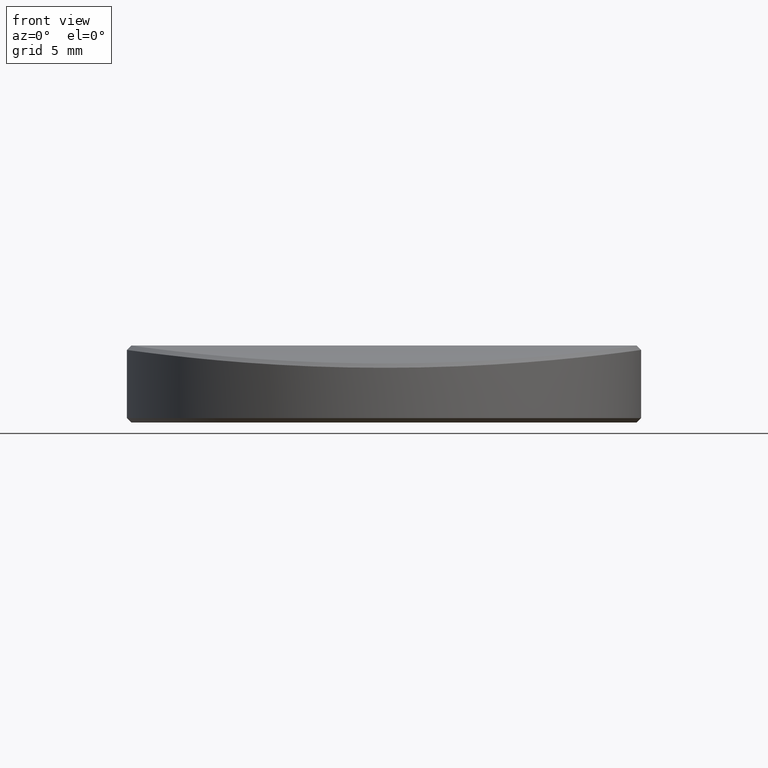
[diagram: clean part render]
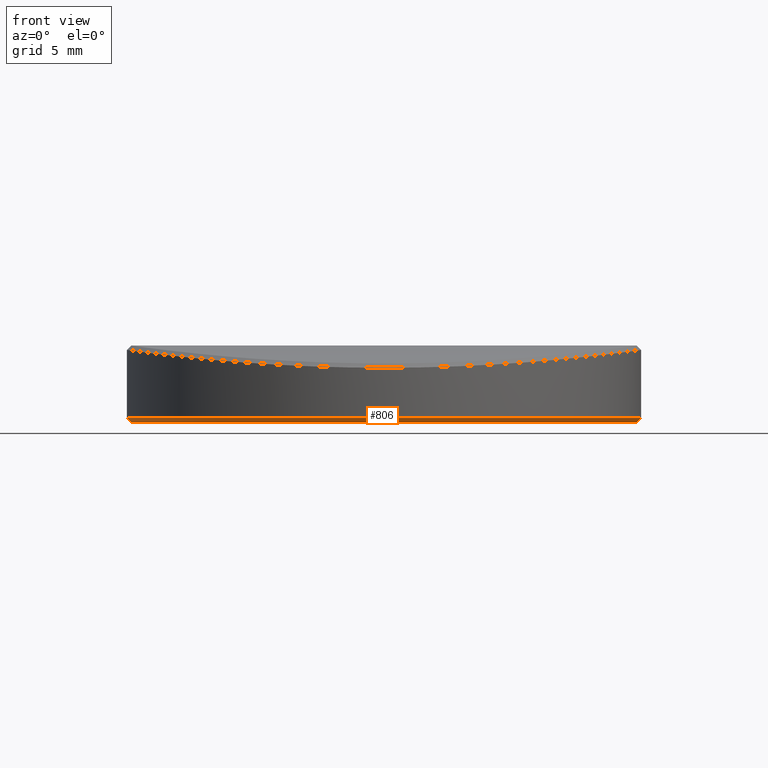
[diagram: same view with one face highlighted and labeled with its STEP entity id]
A machine part, front view. The second image highlights one B-rep face of the part: STEP entity #806.
In plain terms, the highlighted conical surface has half-angle 45 deg.
Its self-contained STEP definition (entity closure, byte-faithful):
#51 = DIRECTION ( 'NONE',  ( 1.000000000000000000, 0.000000000000000000, 0.000000000000000000 ) ) ;
#81 = EDGE_LOOP ( 'NONE', ( #1871, #2416, #2400, #2049 ) ) ;
#168 = DIRECTION ( 'NONE',  ( 1.000000000000000000, 0.000000000000000000, 0.000000000000000000 ) ) ;
#188 = CARTESIAN_POINT ( 'NONE',  ( 11.69999999999999929, 0.000000000000000000, 0.2000000000000005107 ) ) ;
#279 = EDGE_CURVE ( 'NONE', #848, #699, #1546, .T. ) ;
#304 = DIRECTION ( 'NONE',  ( -0.000000000000000000, -0.000000000000000000, -1.000000000000000000 ) ) ;
#396 = VECTOR ( 'NONE', #1694, 1000.000000000000000 ) ;
#403 = CARTESIAN_POINT ( 'NONE',  ( 0.000000000000000000, 0.000000000000000000, 0.2000000000000005107 ) ) ;
#421 = EDGE_CURVE ( 'NONE', #2062, #699, #2411, .T. ) ;
#645 = CIRCLE ( 'NONE', #1947, 11.50000000000000000 ) ;
#699 = VERTEX_POINT ( 'NONE', #1765 ) ;
#720 = CARTESIAN_POINT ( 'NONE',  ( -11.69999999999999929, 1.432836755002403087E-15, 0.2000000000000005107 ) ) ;
#806 = ADVANCED_FACE ( 'NONE', ( #1743 ), #2525, .T. ) ;
#848 = VERTEX_POINT ( 'NONE', #1325 ) ;
#883 = LINE ( 'NONE', #720, #396 ) ;
#1014 = CARTESIAN_POINT ( 'NONE',  ( -11.69999999999999929, 0.000000000000000000, 0.2000000000000005107 ) ) ;
#1120 = DIRECTION ( 'NONE',  ( -0.000000000000000000, -0.000000000000000000, 1.000000000000000000 ) ) ;
#1311 = DIRECTION ( 'NONE',  ( 1.000000000000000000, 0.000000000000000000, 0.000000000000000000 ) ) ;
#1325 = CARTESIAN_POINT ( 'NONE',  ( 11.50000000000000000, 0.000000000000000000, 0.000000000000000000 ) ) ;
#1426 = CARTESIAN_POINT ( 'NONE',  ( -11.50000000000000000, 1.420590287010929533E-15, 0.000000000000000000 ) ) ;
#1448 = CARTESIAN_POINT ( 'NONE',  ( 0.000000000000000000, 0.000000000000000000, 0.000000000000000000 ) ) ;
#1546 = LINE ( 'NONE', #188, #2161 ) ;
#1694 = DIRECTION ( 'NONE',  ( -0.7071067811865444641, 8.659560562354895880E-17, 0.7071067811865505703 ) ) ;
#1743 = FACE_OUTER_BOUND ( 'NONE', #81, .T. ) ;
#1749 = DIRECTION ( 'NONE',  ( 0.7071067811865444641, 0.000000000000000000, 0.7071067811865505703 ) ) ;
#1765 = CARTESIAN_POINT ( 'NONE',  ( 11.69999999999999929, 1.432836755002403087E-15, 0.2000000000000005107 ) ) ;
#1788 = EDGE_CURVE ( 'NONE', #2073, #2062, #883, .T. ) ;
#1871 = ORIENTED_EDGE ( 'NONE', *, *, #1788, .F. ) ;
#1947 = AXIS2_PLACEMENT_3D ( 'NONE', #1448, #304, #51 ) ;
#1966 = AXIS2_PLACEMENT_3D ( 'NONE', #403, #1120, #168 ) ;
#2049 = ORIENTED_EDGE ( 'NONE', *, *, #421, .F. ) ;
#2062 = VERTEX_POINT ( 'NONE', #1014 ) ;
#2073 = VERTEX_POINT ( 'NONE', #1426 ) ;
#2114 = DIRECTION ( 'NONE',  ( -0.000000000000000000, -0.000000000000000000, 1.000000000000000000 ) ) ;
#2141 = CARTESIAN_POINT ( 'NONE',  ( 0.000000000000000000, 0.000000000000000000, 0.2000000000000005107 ) ) ;
#2151 = AXIS2_PLACEMENT_3D ( 'NONE', #2141, #2114, #1311 ) ;
#2161 = VECTOR ( 'NONE', #1749, 1000.000000000000000 ) ;
#2236 = EDGE_CURVE ( 'NONE', #848, #2073, #645, .T. ) ;
#2400 = ORIENTED_EDGE ( 'NONE', *, *, #279, .T. ) ;
#2411 = CIRCLE ( 'NONE', #1966, 11.69999999999999929 ) ;
#2416 = ORIENTED_EDGE ( 'NONE', *, *, #2236, .F. ) ;
#2525 = CONICAL_SURFACE ( 'NONE', #2151, 11.69999999999999929, 0.7853981633974439491 ) ;